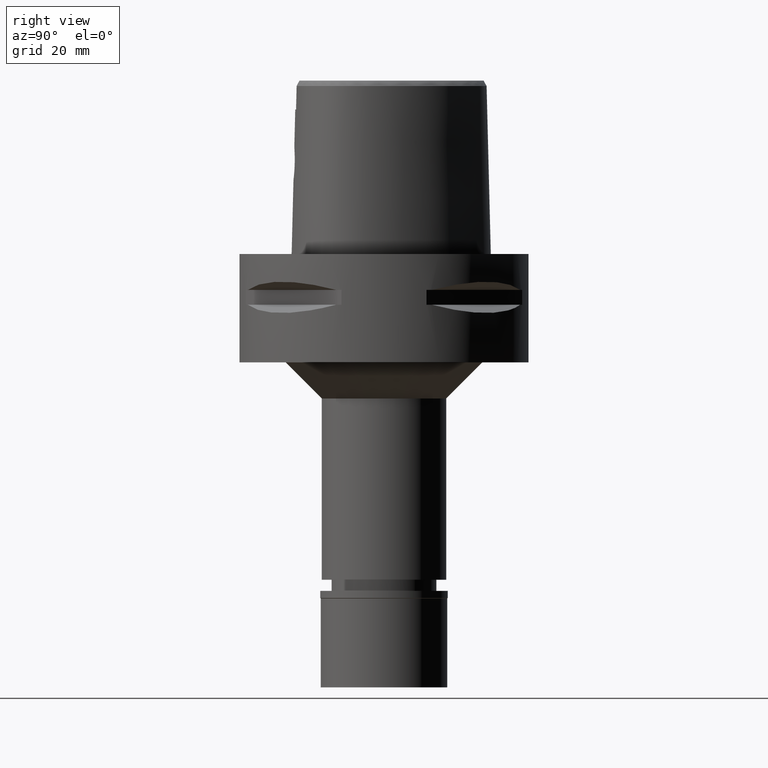
[diagram: clean part render]
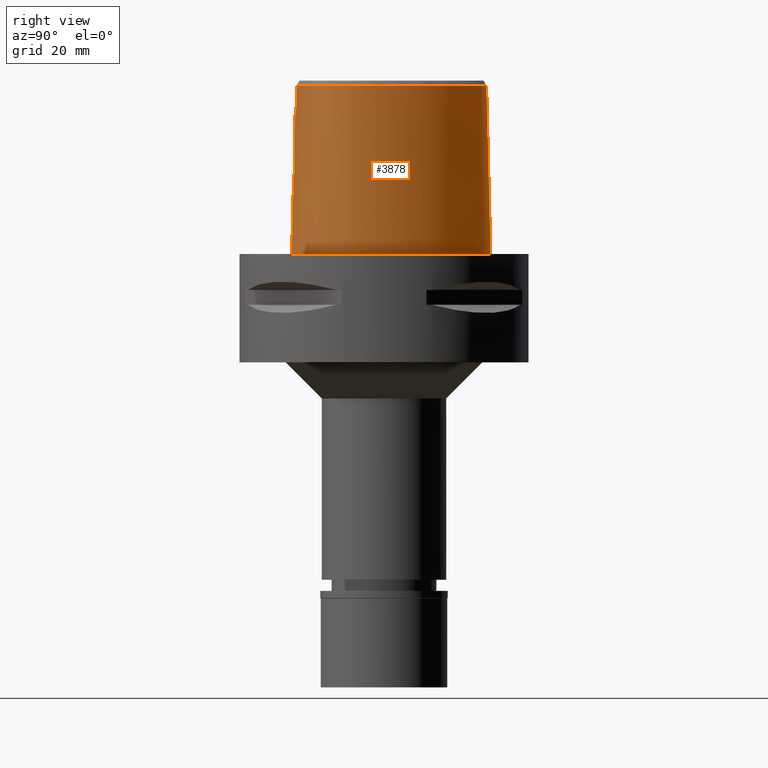
[diagram: same view with one face highlighted and labeled with its STEP entity id]
A machine part, right view. The second image highlights one B-rep face of the part: STEP entity #3878.
In plain terms, the highlighted face is a freeform B-spline surface patch.
Its self-contained STEP definition (entity closure, byte-faithful):
#1 = CARTESIAN_POINT ( 'NONE',  ( 27.12297208028999762, -11.41745865554000083, -0.9304144966840000031 ) ) ;
#6 = CARTESIAN_POINT ( 'NONE',  ( 3.115833847005023305, -24.76582665838805752, 28.31908668410563479 ) ) ;
#27 = CARTESIAN_POINT ( 'NONE',  ( 1.541632511942504946, -24.57506718866407525, 40.00000010061338429 ) ) ;
#32 = CARTESIAN_POINT ( 'NONE',  ( 4.549574022937066253, -24.73494683104343395, 24.92875559372934546 ) ) ;
#50 = CARTESIAN_POINT ( 'NONE',  ( 8.894849805857001357, 26.12169677030999893, 31.32395472169999806 ) ) ;
#53 = B_SPLINE_CURVE_WITH_KNOTS ( 'NONE', 3,
 ( #4469, #2809, #27, #4031 ),
 .UNSPECIFIED., .F., .F.,
 ( 4, 4 ),
 ( 0.0000000000000000000, 1.000000000000000000 ),
 .UNSPECIFIED. ) ;
#79 = CARTESIAN_POINT ( 'NONE',  ( 4.472216720976999405, -24.20009030094000124, 46.52069014668999358 ) ) ;
#120 = CARTESIAN_POINT ( 'NONE',  ( -0.5886350996053999474, 29.18561927013999835, 15.19677011251000032 ) ) ;
#150 = CARTESIAN_POINT ( 'NONE',  ( 1.153626000818862352, -24.82864766317861438, 29.44729853102404959 ) ) ;
#175 = FACE_OUTER_BOUND ( 'NONE', #4059, .T. ) ;
#194 = CARTESIAN_POINT ( 'NONE',  ( 2.373865160064000168, -25.21827242167999827, 15.19677011251000032 ) ) ;
#201 = LINE ( 'NONE', #2605, #949 ) ;
#229 = CARTESIAN_POINT ( 'NONE',  ( 1.952635857166509670, -25.01389984458331028, 20.88358337727338565 ) ) ;
#236 = CARTESIAN_POINT ( 'NONE',  ( 13.21796077284791338, 24.04386715009237108, 1.974420407008757594E-06 ) ) ;
#305 = CARTESIAN_POINT ( 'NONE',  ( 25.23075706227999859, 6.836210430755000012, -0.9304144966840000031 ) ) ;
#311 = CARTESIAN_POINT ( 'NONE',  ( 3.756465253610789645, -24.73852494831078630, 27.57169756947411798 ) ) ;
#317 = VERTEX_POINT ( 'NONE', #2881 ) ;
#330 = CARTESIAN_POINT ( 'NONE',  ( 27.16099298173000065, -1.823107493111000066, 15.19677011251000032 ) ) ;
#336 = CARTESIAN_POINT ( 'NONE',  ( 2.832428424601348027, -24.77719445135581466, 28.56165880794238632 ) ) ;
#358 = CARTESIAN_POINT ( 'NONE',  ( 6.528779353751000158, -24.06669571811000097, 47.45113933088000380 ) ) ;
#362 = CARTESIAN_POINT ( 'NONE',  ( 3.458990831517684938, -24.75121472495267838, 27.95724070546421913 ) ) ;
#386 = CARTESIAN_POINT ( 'NONE',  ( 2.334473171432999816, -24.41160994663999873, 47.45113933088000380 ) ) ;
#391 = CARTESIAN_POINT ( 'NONE',  ( 4.523121810470201787, -24.72136632330987993, 25.57645994462143690 ) ) ;
#410 = CARTESIAN_POINT ( 'NONE',  ( 26.50159626291999970, -8.602222729264999757, 47.45113933088000380 ) ) ;
#415 = CARTESIAN_POINT ( 'NONE',  ( 3.739368471919709336, -24.86915408846632047, 22.40675187304717397 ) ) ;
#427 = ORIENTED_EDGE ( 'NONE', *, *, #618, .T. ) ;
#455 = CARTESIAN_POINT ( 'NONE',  ( 9.105791461692000155, 26.46675913856000051, 15.19677011251000032 ) ) ;
#464 = CARTESIAN_POINT ( 'NONE',  ( -1.597093597969000331E-11, -25.57499999999999929, 7.627232179174998351E-14 ) ) ;
#483 = CARTESIAN_POINT ( 'NONE',  ( 0.7265635656848999924, 29.22802202868999899, 15.19677011251000032 ) ) ;
#535 = B_SPLINE_CURVE_WITH_KNOTS ( 'NONE', 3,
 ( #4139, #4966, #3435, #2193, #3772, #974, #2554, #5019, #4942, #3358, #1383, #2970, #1406, #229, #2992, #4574, #3796, #1430, #2628, #1462, #2683, #4327, #3934, #3542, #1132, #4276, #3177, #3514, #1932, #2381, #415, #4757, #2764, #3099, #4352, #1985, #3880, #4247, #5104, #1549, #1156, #3567, #2656, #720, #692, #32, #771, #1907, #391, #4706, #5043, #2271, #4302, #3854, #1599, #2299, #1575, #5069, #3962, #2741, #311, #1882, #1180, #362, #2350, #3157, #3461, #4683, #1961, #1488, #6, #4733, #336, #797, #3072, #2323, #3907, #4652, #1103, #3487, #1513, #2714, #746, #3130, #150, #3301, #4381 ),
 .UNSPECIFIED., .F., .F.,
 ( 4, 2, 2, 1, 1, 1, 1, 2, 2, 2, 2, 2, 1, 1, 2, 2, 2, 2, 2, 2, 1, 2, 2, 2, 2, 1, 2, 2, 2, 2, 1, 1, 1, 2, 2, 2, 2, 2, 1, 1, 2, 2, 2, 1, 2, 2, 2, 1, 2, 2, 4 ),
 ( 0.0000000000000000000, 0.06249999999999160394, 0.09374999999998739897, 0.1093749999999853034, 0.1171874999999842626, 0.1210937499999836103, 0.1230468749999832495, 0.1240234374999830552, 0.1249999999999828748, 0.1874999999999765188, 0.2187499999999733269, 0.2343749999999715228, 0.2421874999999705791, 0.2460937499999701628, 0.2480468749999697464, 0.2499999999999693578, 0.2812499999999640843, 0.2968749999999615308, 0.3124999999999589217, 0.3437499999999537037, 0.3593749999999510392, 0.3671874999999493183, 0.3749999999999476530, 0.4374999999999328870, 0.4687499999999258926, 0.4843749999999227285, 0.4921874999999211187, 0.4999999999999195088, 0.5624999999999068523, 0.5937499999999006350, 0.6093749999998975264, 0.6171874999998959721, 0.6210937499998951949, 0.6230468749998948619, 0.6249999999998945288, 0.6874999999998975264, 0.7187499999998990807, 0.7343749999999000799, 0.7421874999999006350, 0.7460937499999010791, 0.7480468749999016342, 0.7499999999999020783, 0.7812499999999142908, 0.7968749999999202860, 0.8046874999999232836, 0.8124999999999263922, 0.8437499999999386047, 0.8593749999999447109, 0.8671874999999478195, 0.8749999999999508171, 1.000000000000000000 ),
 .UNSPECIFIED. ) ;
#559 = CARTESIAN_POINT ( 'NONE',  ( 6.913370730855006308, 26.74336904842582641, 46.52071437701380319 ) ) ;
#601 = CARTESIAN_POINT ( 'NONE',  ( 6.262496925595644193, 28.35083003241188493, 1.974420407008757594E-06 ) ) ;
#618 = EDGE_CURVE ( 'NONE', #4721, #4061, #5120, .T. ) ;
#647 = VERTEX_POINT ( 'NONE', #1754 ) ;
#687 = CARTESIAN_POINT ( 'NONE',  ( 11.64093423793000071, -23.76831843015999723, 15.19677011251000032 ) ) ;
#692 = CARTESIAN_POINT ( 'NONE',  ( 4.547962263617892020, -24.73685171198799182, 24.85950514487635488 ) ) ;
#715 = CARTESIAN_POINT ( 'NONE',  ( 27.47379250792000249, -5.347524337088000124, 15.19677011251000032 ) ) ;
#720 = CARTESIAN_POINT ( 'NONE',  ( 4.544345534604059544, -24.73984392723427916, 24.75509518056023595 ) ) ;
#740 = CARTESIAN_POINT ( 'NONE',  ( 18.56135208419999927, -21.47443746733999959, -0.9304144966840000031 ) ) ;
#746 = CARTESIAN_POINT ( 'NONE',  ( 1.813541865606719483, -24.81148519056494806, 29.17313109452613418 ) ) ;
#763 = CARTESIAN_POINT ( 'NONE',  ( 4.516620373932790145, -24.24973711153631939, 44.34712678184333612 ) ) ;
#767 = CARTESIAN_POINT ( 'NONE',  ( 15.01246784113000032, -22.23414197131999970, 31.32395472169999806 ) ) ;
#771 = CARTESIAN_POINT ( 'NONE',  ( 4.549979298456326759, -24.73407938846013110, 24.96161245962010611 ) ) ;
#792 = CARTESIAN_POINT ( 'NONE',  ( 25.30843714187999893, -14.61183299640999955, 15.19677011251000032 ) ) ;
#797 = CARTESIAN_POINT ( 'NONE',  ( 2.744259390201582161, -24.78063453097690427, 28.63060330404749365 ) ) ;
#816 = CARTESIAN_POINT ( 'NONE',  ( -0.5711750988353999636, 28.78275048854000318, 31.32395472169999806 ) ) ;
#841 = CARTESIAN_POINT ( 'NONE',  ( 1.375467128704556785, 28.41206022877227610, 46.52071663099745535 ) ) ;
#888 = CARTESIAN_POINT ( 'NONE',  ( -0.9090099845204999696, 29.56867551645999725, -0.9304144966840000031 ) ) ;
#890 = CARTESIAN_POINT ( 'NONE',  ( 20.76159157987097359, 13.99289103071525098, 46.52070817855889118 ) ) ;
#896 = ORIENTED_EDGE ( 'NONE', *, *, #2450, .F. ) ;
#916 = CARTESIAN_POINT ( 'NONE',  ( 17.77103258665999874, 19.53703864478000085, -0.9304144966840000031 ) ) ;
#949 = VECTOR ( 'NONE', #4603, 1000.000000000000000 ) ;
#974 = CARTESIAN_POINT ( 'NONE',  ( 1.374979210368050042, -25.03889659011747781, 20.66206490747601876 ) ) ;
#1048 = CARTESIAN_POINT ( 'NONE',  ( -0.8532294277709000507, -25.59082453142000091, -0.9304144966840000031 ) ) ;
#1058 = CARTESIAN_POINT ( 'NONE',  ( 9.304563380788259508, 26.79191402025199764, 1.974420407008757594E-06 ) ) ;
#1073 = CARTESIAN_POINT ( 'NONE',  ( 18.17462484730999961, -20.76404276609999755, 31.32395472169999806 ) ) ;
#1099 = CARTESIAN_POINT ( 'NONE',  ( 24.14246364315999926, -15.65707284800999943, 31.32395472169999806 ) ) ;
#1103 = CARTESIAN_POINT ( 'NONE',  ( 2.284825071839919453, -24.79755434855747609, 28.93755567619669833 ) ) ;
#1127 = CARTESIAN_POINT ( 'NONE',  ( 6.584202214691000421, -24.46732446097999869, 31.32395472169999806 ) ) ;
#1131 = LINE ( 'NONE', #2006, #1450 ) ;
#1132 = CARTESIAN_POINT ( 'NONE',  ( 3.205701519811188227, -24.92381821717546941, 21.77105828208815197 ) ) ;
#1150 = CARTESIAN_POINT ( 'NONE',  ( 20.94550184246999791, -18.97246393720000057, 31.32395472169999806 ) ) ;
#1156 = CARTESIAN_POINT ( 'NONE',  ( 4.496850936021978384, -24.75618253903772725, 24.29074513878774155 ) ) ;
#1176 = CARTESIAN_POINT ( 'NONE',  ( 23.44929528191000045, -17.78045351983000089, -0.9304144966840000031 ) ) ;
#1180 = CARTESIAN_POINT ( 'NONE',  ( 3.512978482355693099, -24.74890643940160473, 27.89278862330787234 ) ) ;
#1228 = CARTESIAN_POINT ( 'NONE',  ( 24.69258566271185984, -14.08975149522584758, 46.52069831738054262 ) ) ;
#1230 = CARTESIAN_POINT ( 'NONE',  ( 11.74025984185140636, -24.13566401477424961, 1.974420407008757594E-06 ) ) ;
#1250 = CARTESIAN_POINT ( 'NONE',  ( 16.83227268858000159, 18.76477911573000057, 47.45113933088000380 ) ) ;
#1273 = CARTESIAN_POINT ( 'NONE',  ( 0.7047156105697000017, 28.82388503770999932, 31.32395472169999806 ) ) ;
#1276 = CARTESIAN_POINT ( 'NONE',  ( 24.48700992949209621, 6.834036305494167962, 46.52070592457523190 ) ) ;
#1289 = CARTESIAN_POINT ( 'NONE',  ( -1.451045074373000022E-08, -24.57504746727000011, 40.00000005214000254 ) ) ;
#1299 = CARTESIAN_POINT ( 'NONE',  ( 21.30723581571999858, 12.30173103132000101, 47.45113933088000380 ) ) ;
#1301 = CARTESIAN_POINT ( 'NONE',  ( 8.153873202539225318, -23.84765792154144748, 46.52069127368181967 ) ) ;
#1309 = CARTESIAN_POINT ( 'NONE',  ( 3.864279361662000249E-11, 29.57499999998999840, 6.979602081476998784E-14 ) ) ;
#1328 = CARTESIAN_POINT ( 'NONE',  ( -0.5689009026265999802, -25.59577917834000260, -0.9304144966840000031 ) ) ;
#1349 = CARTESIAN_POINT ( 'NONE',  ( -0.8321552619004000118, -24.38153494473000293, 47.45113933088000380 ) ) ;
#1366 = CARTESIAN_POINT ( 'NONE',  ( 3.864279361662000249E-11, 29.57499999998999840, 6.979602081476998784E-14 ) ) ;
#1383 = CARTESIAN_POINT ( 'NONE',  ( 1.717599865388684588, -25.02478947459729142, 20.78664336873092466 ) ) ;
#1406 = CARTESIAN_POINT ( 'NONE',  ( 1.732112786591196496, -25.02412118468006597, 20.79259001707690757 ) ) ;
#1412 = CARTESIAN_POINT ( 'NONE',  ( 25.20914245399029951, 6.827421856349520368, 1.974420407008757594E-06 ) ) ;
#1430 = CARTESIAN_POINT ( 'NONE',  ( 2.890648186359349836, -24.95092863274542339, 21.48525694161353883 ) ) ;
#1439 = CARTESIAN_POINT ( 'NONE',  ( 25.63812385576339992, -14.80217770964259749, 1.974420407008757594E-06 ) ) ;
#1450 = VECTOR ( 'NONE', #1906, 1000.000000000000227 ) ;
#1458 = CARTESIAN_POINT ( 'NONE',  ( 26.36214109940999961, -1.945111151957999995, 47.45113933088000380 ) ) ;
#1462 = CARTESIAN_POINT ( 'NONE',  ( 3.051956606900725344, -24.93748982820226345, 21.62510482542859336 ) ) ;
#1468 = CARTESIAN_POINT ( 'NONE',  ( 27.10051712605066498, -11.41106443955769123, 1.974420407008757594E-06 ) ) ;
#1482 = CARTESIAN_POINT ( 'NONE',  ( 11.74634101496999961, -24.15815461141999876, -0.9304144966840000031 ) ) ;
#1488 = CARTESIAN_POINT ( 'NONE',  ( 3.227783996387108889, -24.76107025147646823, 28.20686722737168139 ) ) ;
#1508 = CARTESIAN_POINT ( 'NONE',  ( 26.66520866077999941, -5.367805583153999471, 47.45113933088000380 ) ) ;
#1513 = CARTESIAN_POINT ( 'NONE',  ( 1.986969619769310080, -24.80670454267275460, 29.09445024139903069 ) ) ;
#1543 = CARTESIAN_POINT ( 'NONE',  ( 27.30517726064999806, -8.703986977019001259, 15.19677011251000032 ) ) ;
#1549 = CARTESIAN_POINT ( 'NONE',  ( 4.412773899541609701, -24.77516587915418000, 23.85162301166200649 ) ) ;
#1569 = CARTESIAN_POINT ( 'NONE',  ( 6.639625075632000772, -24.86795320384000263, 15.19677011251000032 ) ) ;
#1575 = CARTESIAN_POINT ( 'NONE',  ( 4.212885333431599655, -24.72121330192673838, 26.71877560768000848 ) ) ;
#1594 = CARTESIAN_POINT ( 'NONE',  ( 21.65785136985000037, 12.50416149780000019, 31.32395472169999806 ) ) ;
#1599 = CARTESIAN_POINT ( 'NONE',  ( 4.230858595537660527, -24.72073100376797683, 26.67421065539050673 ) ) ;
#1626 = CARTESIAN_POINT ( 'NONE',  ( 6.114741921538999314, 27.99897532808000022, 15.19677011251000032 ) ) ;
#1629 = CARTESIAN_POINT ( 'NONE',  ( -1.250270788031999972E-11, 28.41206021534999593, 46.52071719450999154 ) ) ;
#1650 = CARTESIAN_POINT ( 'NONE',  ( 26.66096789088744856, -6.450661550929511989, 46.52070141660805547 ) ) ;
#1698 = CARTESIAN_POINT ( 'NONE',  ( 21.61408639850393953, -17.89738970854695310, 46.52069634514494822 ) ) ;
#1721 = CARTESIAN_POINT ( 'NONE',  ( 26.53043812451387140, -3.252830914801159157, 46.52070254359986023 ) ) ;
#1745 = CARTESIAN_POINT ( 'NONE',  ( -0.5595330819889999807, -24.78951209270000078, 31.32395472169999806 ) ) ;
#1754 = CARTESIAN_POINT ( 'NONE',  ( -1.597093597969000331E-11, -25.57499999999999929, 7.627232179174998351E-14 ) ) ;
#1768 = ORIENTED_EDGE ( 'NONE', *, *, #3568, .T. ) ;
#1833 = CARTESIAN_POINT ( 'NONE',  ( 26.77222809492654321, 1.900468737312428935, 1.974420407008757594E-06 ) ) ;
#1834 = ORIENTED_EDGE ( 'NONE', *, *, #1880, .F. ) ;
#1846 = CARTESIAN_POINT ( 'NONE',  ( -0.8462047058141000111, -25.18772800252000010, 15.19677011251000032 ) ) ;
#1876 = CARTESIAN_POINT ( 'NONE',  ( 24.85610464697000310, 6.683875464327999616, 15.19677011251000032 ) ) ;
#1880 = EDGE_CURVE ( 'NONE', #3530, #2068, #2353, .T. ) ;
#1882 = CARTESIAN_POINT ( 'NONE',  ( 3.666127388008825871, -24.74236822830322780, 27.69981209002142819 ) ) ;
#1902 = CARTESIAN_POINT ( 'NONE',  ( 22.00846692397999860, 12.70659196427999937, 15.19677011251000032 ) ) ;
#1906 = DIRECTION ( 'NONE',  ( 1.099070075550026159E-12, 0.02499051293976060906, -0.9996876883622242138 ) ) ;
#1907 = CARTESIAN_POINT ( 'NONE',  ( 4.550159243768821860, -24.72595648767389775, 25.28426205013431982 ) ) ;
#1922 = CARTESIAN_POINT ( 'NONE',  ( 4.472216720976999405, -24.20009030094000124, 46.52069014668999358 ) ) ;
#1927 = CARTESIAN_POINT ( 'NONE',  ( 14.86558286360999936, -21.85772790580999825, 47.45113933088000380 ) ) ;
#1932 = CARTESIAN_POINT ( 'NONE',  ( 3.606429171763810171, -24.88406245827872709, 22.22480142265831660 ) ) ;
#1956 = CARTESIAN_POINT ( 'NONE',  ( 24.95856548170000266, -14.40983449898000046, 31.32395472169999806 ) ) ;
#1961 = CARTESIAN_POINT ( 'NONE',  ( 3.237005511786298584, -24.76067832112077838, 28.19756469887087036 ) ) ;
#1971 = ORIENTED_EDGE ( 'NONE', *, *, #2572, .T. ) ;
#1978 = CARTESIAN_POINT ( 'NONE',  ( 17.45811262063999791, 19.27961880176999898, 15.19677011251000032 ) ) ;
#1985 = CARTESIAN_POINT ( 'NONE',  ( 4.141553595727708981, -24.81790787904298767, 23.11546483665215845 ) ) ;
#2004 = CARTESIAN_POINT ( 'NONE',  ( 12.70057962618999881, 23.45048168634999897, 31.32395472169999806 ) ) ;
#2006 = CARTESIAN_POINT ( 'NONE',  ( -1.250270788031999972E-11, 28.41206021534999593, 46.52071719450999154 ) ) ;
#2029 = CARTESIAN_POINT ( 'NONE',  ( 2.760678900605475494, 28.19254769429864282, 46.52071606750154587 ) ) ;
#2051 = CARTESIAN_POINT ( 'NONE',  ( 26.56868348264600854, -7.988862950299643551, 46.52070085311213177 ) ) ;
#2068 = VERTEX_POINT ( 'NONE', #2994 ) ;
#2072 = CARTESIAN_POINT ( 'NONE',  ( 12.96695409472000016, 23.75598709287999810, 15.19677011251000032 ) ) ;
#2110 = ORIENTED_EDGE ( 'NONE', *, *, #3586, .F. ) ;
#2159 = B_SPLINE_CURVE_WITH_KNOTS ( 'NONE', 3,
 ( #1629, #841, #2029, #4449, #559, #3204, #3225, #890, #1276, #3708, #1721, #1650, #2051, #3612, #4825, #1228, #3686, #4851, #3246, #1698, #3299, #4493, #4782, #4879, #1301, #79 ),
 .UNSPECIFIED., .F., .F.,
 ( 4, 2, 2, 2, 2, 2, 2, 2, 2, 2, 2, 2, 4 ),
 ( 0.0000000000000000000, 0.06249999999999986122, 0.1249999999999997224, 0.2499999999999994449, 0.4999999999999988898, 0.5624999999999987788, 0.6249999999999986677, 0.6874999999999984457, 0.7187499999999985567, 0.7499999999999985567, 0.8124999999999988898, 0.8749999999999991118, 1.000000000000000000 ),
 .UNSPECIFIED. ) ;
#2193 = CARTESIAN_POINT ( 'NONE',  ( 1.011135947205146435, -25.05051087875798643, 20.56129276502818826 ) ) ;
#2243 = CARTESIAN_POINT ( 'NONE',  ( 4.602926386878999132, -24.35121850029999990, 40.00000005214999987 ) ) ;
#2265 = CARTESIAN_POINT ( 'NONE',  ( 11.53552746089000003, -23.37848224889000193, 31.32395472169999806 ) ) ;
#2271 = CARTESIAN_POINT ( 'NONE',  ( 4.337077477086218380, -24.71860659089785983, 26.37767366826317428 ) ) ;
#2294 = CARTESIAN_POINT ( 'NONE',  ( 25.62380425181000021, 1.595558239520999955, 47.45113933088000380 ) ) ;
#2299 = CARTESIAN_POINT ( 'NONE',  ( 4.220110851308596978, -24.72101730040711587, 26.70095761995009553 ) ) ;
#2319 = CARTESIAN_POINT ( 'NONE',  ( 18.36798846576000344, -21.11924011672000034, 15.19677011251000032 ) ) ;
#2323 = CARTESIAN_POINT ( 'NONE',  ( 2.592678685478296607, -24.78641481269938396, 28.73923899945382843 ) ) ;
#2324 = B_SPLINE_SURFACE_WITH_KNOTS ( 'NONE', 3, 3, ( 
 ( #1048, #1846, #4881, #1349 ),
 ( #1328, #4495, #1745, #4522 ),
 ( #3324, #194, #3041, #386 ),
 ( #5065, #1569, #1127, #358 ),
 ( #1482, #687, #2265, #4648 ),
 ( #4323, #3483, #767, #1927 ),
 ( #740, #2319, #1073, #3536 ),
 ( #4622, #4242, #1150, #4702 ),
 ( #1176, #2760, #2734, #3508 ),
 ( #5038, #4345, #1099, #2346 ),
 ( #3125, #792, #1956, #2709 ),
 ( #4728, #3874, #3928, #2651 ),
 ( #1, #2678, #3151, #5097 ),
 ( #2374, #1543, #3958, #410 ),
 ( #4271, #715, #3429, #1508 ),
 ( #3457, #330, #5011, #1458 ),
 ( #4298, #3848, #3092, #2294 ),
 ( #305, #1876, #3068, #4676 ),
 ( #3902, #1902, #1594, #1299 ),
 ( #916, #1978, #3583, #1250 ),
 ( #4076, #2072, #2004, #2419 ),
 ( #2858, #455, #50, #2493 ),
 ( #3275, #1626, #4823, #3632 ),
 ( #4004, #3657, #2883, #3202 ),
 ( #4447, #483, #1273, #4418 ),
 ( #4751, #120, #816, #3173 ),
 ( #888, #3244, #3562, #4849 ) ),
 .UNSPECIFIED., .F., .F., .F.,
 ( 4, 1, 1, 1, 1, 1, 1, 1, 1, 1, 1, 1, 1, 1, 1, 1, 1, 1, 1, 1, 1, 1, 1, 1, 4 ),
 ( 4, 4 ),
 ( -0.008851417483071999381, 0.0000000000000000000, 0.08333333333345001315, 0.1250000000001000033, 0.1666666666668000230, 0.2083333333333000081, 0.2500000000000000000, 0.2916666666666999919, 0.3125000000000000000, 0.3333333333333000081, 0.3541666666666999919, 0.3749999999998999689, 0.4166666666666000163, 0.4583333333332000326, 0.4999999999998999689, 0.5416666666664999852, 0.5833333333331000015, 0.6666666666664999852, 0.7499999999997000177, 0.8333333333329999704, 0.8749999999995999866, 0.9166666666663000340, 0.9583333333329000503, 1.000000000000000000, 1.012009199036000062 ),
 ( 4.810968352864000245E-09, 0.9999997546407000115 ),
 .UNSPECIFIED. ) ;
#2346 = CARTESIAN_POINT ( 'NONE',  ( 23.81701505730000079, -15.41783915960999884, 47.45113933088000380 ) ) ;
#2350 = CARTESIAN_POINT ( 'NONE',  ( 3.373359712598877458, -24.75487047605673041, 28.05365220515685465 ) ) ;
#2353 = B_SPLINE_CURVE_WITH_KNOTS ( 'NONE', 3,
 ( #3452, #3531, #763, #1922 ),
 .UNSPECIFIED., .F., .F.,
 ( 4, 4 ),
 ( 0.0000000000000000000, 1.000000000000000000 ),
 .UNSPECIFIED. ) ;
#2374 = CARTESIAN_POINT ( 'NONE',  ( 27.70696775952000124, -8.754869100896998546, -0.9304144966840000031 ) ) ;
#2381 = CARTESIAN_POINT ( 'NONE',  ( 3.695416430653956752, -24.87420445000562452, 22.34444809527640885 ) ) ;
#2382 = CARTESIAN_POINT ( 'NONE',  ( -1.451045074373000022E-08, -24.57504746727000011, 40.00000005214000254 ) ) ;
#2419 = CARTESIAN_POINT ( 'NONE',  ( 12.43420515765000012, 23.14497627983000072, 47.45113933088000380 ) ) ;
#2450 = EDGE_CURVE ( 'NONE', #317, #4494, #1131, .T. ) ;
#2482 = CARTESIAN_POINT ( 'NONE',  ( -4.859642500050305354E-09, -24.74922215084226451, 33.03333351495373194 ) ) ;
#2493 = CARTESIAN_POINT ( 'NONE',  ( 8.683908150023000871, 25.77663440205000001, 47.45113933088000380 ) ) ;
#2554 = CARTESIAN_POINT ( 'NONE',  ( 1.483723097888439035, -25.03485232889442713, 20.69751684277656878 ) ) ;
#2572 = EDGE_CURVE ( 'NONE', #317, #2068, #2159, .T. ) ;
#2586 = CARTESIAN_POINT ( 'NONE',  ( 27.85475984794120663, -5.337968751240708798, 1.974420407008757594E-06 ) ) ;
#2605 = CARTESIAN_POINT ( 'NONE',  ( -1.985135560754999918E-12, -25.06378435148999984, 20.44999999999999929 ) ) ;
#2628 = CARTESIAN_POINT ( 'NONE',  ( 2.955264688608310930, -24.94567926532401358, 21.53931554468389820 ) ) ;
#2651 = CARTESIAN_POINT ( 'NONE',  ( 25.26074791542000142, -12.91722050671000055, 47.45113933088000380 ) ) ;
#2656 = CARTESIAN_POINT ( 'NONE',  ( 4.537017841947839969, -24.74324082396891811, 24.64916680772596536 ) ) ;
#2678 = CARTESIAN_POINT ( 'NONE',  ( 26.73375369943000024, -11.30662581370999931, 15.19677011251000032 ) ) ;
#2683 = CARTESIAN_POINT ( 'NONE',  ( 3.100243586364403559, -24.93331626314396132, 21.66917441973975400 ) ) ;
#2709 = CARTESIAN_POINT ( 'NONE',  ( 24.60869382150999840, -14.20783600154999959, 47.45113933088000380 ) ) ;
#2714 = CARTESIAN_POINT ( 'NONE',  ( 1.883305297015232194, -24.80958828430692975, 29.14211520707035774 ) ) ;
#2734 = CARTESIAN_POINT ( 'NONE',  ( 22.86810880856999617, -17.21714035316999869, 31.32395472169999806 ) ) ;
#2741 = CARTESIAN_POINT ( 'NONE',  ( 3.996558060057622708, -24.72854169055286633, 27.19514510551929831 ) ) ;
#2760 = CARTESIAN_POINT ( 'NONE',  ( 23.15870204523999831, -17.49879693649999979, 15.19677011251000032 ) ) ;
#2764 = CARTESIAN_POINT ( 'NONE',  ( 3.937353243848377371, -24.84519667286562949, 22.71482954510200614 ) ) ;
#2809 = CARTESIAN_POINT ( 'NONE',  ( 3.083107003971940596, -24.50056602138296569, 40.00000010061338429 ) ) ;
#2858 = CARTESIAN_POINT ( 'NONE',  ( 9.316733117526998953, 26.81182150681999943, -0.9304144966840000031 ) ) ;
#2872 = CARTESIAN_POINT ( 'NONE',  ( -4.850846279681444503E-09, -24.66214466420030149, 36.51666702990807778 ) ) ;
#2881 = CARTESIAN_POINT ( 'NONE',  ( -1.250270788031999972E-11, 28.41206021534999593, 46.52071719450999154 ) ) ;
#2883 = CARTESIAN_POINT ( 'NONE',  ( 2.979937747100999790, 28.57037854739000338, 31.32395472169999806 ) ) ;
#2903 = ORIENTED_EDGE ( 'NONE', *, *, #3945, .T. ) ;
#2959 = CARTESIAN_POINT ( 'NONE',  ( 1.372734075386999954E-14, -24.83629963747999980, 29.55000000000000071 ) ) ;
#2970 = CARTESIAN_POINT ( 'NONE',  ( 1.726554843533688599, -25.02437791916835508, 20.79030502623852783 ) ) ;
#2992 = CARTESIAN_POINT ( 'NONE',  ( 2.192364263587875062, -25.00047163864959288, 21.00192190659234370 ) ) ;
#2994 = CARTESIAN_POINT ( 'NONE',  ( 4.472216720976999405, -24.20009030094000124, 46.52069014668999358 ) ) ;
#3027 = CARTESIAN_POINT ( 'NONE',  ( 18.55019646715531678, -21.45394526901041132, 1.974420407008757594E-06 ) ) ;
#3041 = CARTESIAN_POINT ( 'NONE',  ( 2.354169165747999948, -24.81494118415999850, 31.32395472169999806 ) ) ;
#3068 = CARTESIAN_POINT ( 'NONE',  ( 24.48145223166000051, 6.531540497901000109, 31.32395472169999806 ) ) ;
#3072 = CARTESIAN_POINT ( 'NONE',  ( 2.653628212344382398, -24.78409939537364437, 28.69623435022997526 ) ) ;
#3092 = CARTESIAN_POINT ( 'NONE',  ( 26.01411825394999866, 1.699187955500000013, 31.32395472169999806 ) ) ;
#3099 = CARTESIAN_POINT ( 'NONE',  ( 4.043275511959664392, -24.83139551622597807, 22.91194186429524393 ) ) ;
#3125 = CARTESIAN_POINT ( 'NONE',  ( 25.65830880207000320, -14.81383149384000042, -0.9304144966840000031 ) ) ;
#3130 = CARTESIAN_POINT ( 'NONE',  ( 1.779627886570330109, -24.81238721778816014, 29.18772178098384273 ) ) ;
#3151 = CARTESIAN_POINT ( 'NONE',  ( 26.34453531856999930, -11.19579297189000044, 31.32395472169999806 ) ) ;
#3157 = CARTESIAN_POINT ( 'NONE',  ( 3.329382130118905714, -24.75674668230310971, 28.10179055163413864 ) ) ;
#3173 = CARTESIAN_POINT ( 'NONE',  ( -0.5537150980654000909, 28.37988170694000090, 47.45113933088000380 ) ) ;
#3177 = CARTESIAN_POINT ( 'NONE',  ( 3.418326490945208906, -24.90370471633882232, 21.99337763265276635 ) ) ;
#3202 = CARTESIAN_POINT ( 'NONE',  ( 2.892852097346000129, 28.17405735395999855, 47.45113933088000380 ) ) ;
#3204 = CARTESIAN_POINT ( 'NONE',  ( 10.99875819582747205, 24.38035098655865696, 46.52071268652617420 ) ) ;
#3206 = CARTESIAN_POINT ( 'NONE',  ( 6.691850457040011690, -25.24546870095779738, 1.974420407008757594E-06 ) ) ;
#3225 = CARTESIAN_POINT ( 'NONE',  ( 13.63304938779826792, 22.11238814014294363, 46.52071155953430548 ) ) ;
#3244 = CARTESIAN_POINT ( 'NONE',  ( -0.8826521031248000249, 29.16640541415000243, 15.19677011251000032 ) ) ;
#3246 = CARTESIAN_POINT ( 'NONE',  ( 23.08984995680105001, -16.35075897049411253, 46.52069719038878048 ) ) ;
#3257 = B_SPLINE_CURVE_WITH_KNOTS ( 'NONE', 3,
 ( #464, #4784, #3206, #1230, #4559, #3027, #3411, #4581, #4609, #1439, #4997, #1468, #3861, #2586, #4173, #1833, #1412, #4149, #3365, #236, #1058, #601, #3338, #4975, #1366 ),
 .UNSPECIFIED., .F., .F.,
 ( 4, 1, 1, 1, 1, 1, 1, 1, 1, 1, 1, 1, 1, 1, 1, 1, 1, 1, 1, 1, 1, 1, 4 ),
 ( 0.0000000000000000000, 0.08333333333345001315, 0.1250000000001000033, 0.1666666666668000230, 0.2083333333333000081, 0.2500000000000000000, 0.2916666666666999919, 0.3125000000000000000, 0.3333333333333000081, 0.3541666666666999919, 0.3749999999998999689, 0.4166666666666000163, 0.4583333333332000326, 0.4999999999998999689, 0.5416666666664999852, 0.5833333333331000015, 0.6666666666664999852, 0.7499999999997000177, 0.8333333333329999704, 0.8749999999995999866, 0.9166666666663000340, 0.9583333333329000503, 1.000000000000000000 ),
 .UNSPECIFIED. ) ;
#3275 = CARTESIAN_POINT ( 'NONE',  ( 6.271543170706000758, 28.37237220568000140, -0.9304144966840000031 ) ) ;
#3299 = CARTESIAN_POINT ( 'NONE',  ( 20.45409312013616443, -18.82869992193766961, 46.52069578164903874 ) ) ;
#3301 = CARTESIAN_POINT ( 'NONE',  ( 0.5545157691444349002, -24.83629963747999980, 29.54999999999999716 ) ) ;
#3324 = CARTESIAN_POINT ( 'NONE',  ( 2.393561154379000300, -25.62160365920000160, -0.9304144966840000031 ) ) ;
#3338 = CARTESIAN_POINT ( 'NONE',  ( 3.149084863849020088, 29.34015620148282721, 1.974420407008757594E-06 ) ) ;
#3358 = CARTESIAN_POINT ( 'NONE',  ( 1.704163054239501429, -25.02540437729528122, 20.78117410888036787 ) ) ;
#3365 = CARTESIAN_POINT ( 'NONE',  ( 17.75297947338710713, 19.52218746847553987, 1.974420407008757594E-06 ) ) ;
#3411 = CARTESIAN_POINT ( 'NONE',  ( 21.42129056364667861, -19.59889644489260974, 1.974420407008757594E-06 ) ) ;
#3429 = CARTESIAN_POINT ( 'NONE',  ( 27.06950058434999917, -5.357664960121001130, 31.32395472169999806 ) ) ;
#3435 = CARTESIAN_POINT ( 'NONE',  ( 0.5741109003791865506, -25.06046598330699382, 20.47661985235020410 ) ) ;
#3452 = CARTESIAN_POINT ( 'NONE',  ( 4.602926386878999132, -24.35121850029999990, 40.00000005214999987 ) ) ;
#3457 = CARTESIAN_POINT ( 'NONE',  ( 27.56041892290000206, -1.762105663687000057, -0.9304144966840000031 ) ) ;
#3461 = CARTESIAN_POINT ( 'NONE',  ( 3.275992991610295668, -24.75902016830567476, 28.15772619068259885 ) ) ;
#3483 = CARTESIAN_POINT ( 'NONE',  ( 15.15935281866000039, -22.61055603683000115, 15.19677011251000032 ) ) ;
#3487 = CARTESIAN_POINT ( 'NONE',  ( 2.087632527504702740, -24.80370565429717189, 29.04349576580941061 ) ) ;
#3508 = CARTESIAN_POINT ( 'NONE',  ( 22.57751557190999847, -16.93548376984000114, 47.45113933088000380 ) ) ;
#3514 = CARTESIAN_POINT ( 'NONE',  ( 3.560464869665264320, -24.88898092548868846, 22.16607190872596433 ) ) ;
#3530 = VERTEX_POINT ( 'NONE', #2243 ) ;
#3531 = CARTESIAN_POINT ( 'NONE',  ( 4.560197243509509057, -24.30012338778693248, 42.17356341699667155 ) ) ;
#3536 = CARTESIAN_POINT ( 'NONE',  ( 17.98126122886999667, -20.40884541547000097, 47.45113933088000380 ) ) ;
#3542 = CARTESIAN_POINT ( 'NONE',  ( 3.196341748950033423, -24.92467674393279253, 21.76178677583780186 ) ) ;
#3562 = CARTESIAN_POINT ( 'NONE',  ( -0.8562942217290000491, 28.76413531182999961, 31.32395472169999806 ) ) ;
#3567 = CARTESIAN_POINT ( 'NONE',  ( 4.517116520646563771, -24.75057419275595905, 24.43553773667434115 ) ) ;
#3568 = EDGE_CURVE ( 'NONE', #3929, #647, #201, .T. ) ;
#3583 = CARTESIAN_POINT ( 'NONE',  ( 17.14519265460999975, 19.02219895874999978, 31.32395472169999806 ) ) ;
#3586 = EDGE_CURVE ( 'NONE', #3929, #4061, #535, .T. ) ;
#3612 = CARTESIAN_POINT ( 'NONE',  ( 26.04423705949261603, -10.88022456237685809, 46.52069972612034832 ) ) ;
#3632 = CARTESIAN_POINT ( 'NONE',  ( 5.801139423204000778, 27.25218157287000054, 47.45113933088000380 ) ) ;
#3657 = CARTESIAN_POINT ( 'NONE',  ( 3.067023396857000428, 28.96669974081000376, 15.19677011251000032 ) ) ;
#3686 = CARTESIAN_POINT ( 'NONE',  ( 24.33934953590420847, -14.68006085516879011, 46.52069803563260564 ) ) ;
#3708 = CARTESIAN_POINT ( 'NONE',  ( 26.30769162470673095, -1.593520748818601840, 46.52070310709578393 ) ) ;
#3772 = CARTESIAN_POINT ( 'NONE',  ( 1.157035249422594614, -25.04636291852922270, 20.59695966232704833 ) ) ;
#3796 = CARTESIAN_POINT ( 'NONE',  ( 2.697261088284437669, -24.96604596303028600, 21.33198344650132938 ) ) ;
#3848 = CARTESIAN_POINT ( 'NONE',  ( 26.40443225607999977, 1.802817671479999939, 15.19677011251000032 ) ) ;
#3854 = CARTESIAN_POINT ( 'NONE',  ( 4.255303340876160689, -24.72011691775877296, 26.61166571686794313 ) ) ;
#3861 = CARTESIAN_POINT ( 'NONE',  ( 27.68378748924092392, -8.751933587520792202, 1.974420407008757594E-06 ) ) ;
#3874 = CARTESIAN_POINT ( 'NONE',  ( 26.00056140238000069, -13.24168030116999972, 15.19677011251000032 ) ) ;
#3878 = ADVANCED_FACE ( 'NONE', ( #175 ), #2324, .T. ) ;
#3880 = CARTESIAN_POINT ( 'NONE',  ( 4.172398775490961498, -24.81348664747167732, 23.18477895933824584 ) ) ;
#3902 = CARTESIAN_POINT ( 'NONE',  ( 22.35908247811000038, 12.90902243076000033, -0.9304144966840000031 ) ) ;
#3907 = CARTESIAN_POINT ( 'NONE',  ( 2.560989721135740638, -24.78761092133467869, 28.76100236096186080 ) ) ;
#3914 = ORIENTED_EDGE ( 'NONE', *, *, #4791, .T. ) ;
#3928 = CARTESIAN_POINT ( 'NONE',  ( 25.63065465889999928, -13.07945040393999925, 31.32395472169999806 ) ) ;
#3929 = VERTEX_POINT ( 'NONE', #4055 ) ;
#3934 = CARTESIAN_POINT ( 'NONE',  ( 3.180359783745173807, -24.92613363770007595, 21.74608895217521010 ) ) ;
#3945 = EDGE_CURVE ( 'NONE', #3530, #4721, #53, .T. ) ;
#3958 = CARTESIAN_POINT ( 'NONE',  ( 26.90338676178999933, -8.653104853142000508, 31.32395472169999806 ) ) ;
#3962 = CARTESIAN_POINT ( 'NONE',  ( 4.115420520910590518, -24.72394829500682434, 26.95489229166221889 ) ) ;
#4004 = CARTESIAN_POINT ( 'NONE',  ( 3.154109046611999645, 29.36302093424000148, -0.9304144966840000031 ) ) ;
#4031 = CARTESIAN_POINT ( 'NONE',  ( -1.451045074373000022E-08, -24.57504746727000011, 40.00000005214000254 ) ) ;
#4055 = CARTESIAN_POINT ( 'NONE',  ( -1.985135560754999918E-12, -25.06378435148999984, 20.44999999999999929 ) ) ;
#4059 = EDGE_LOOP ( 'NONE', ( #896, #1971, #1834, #2903, #427, #2110, #1768, #3914 ) ) ;
#4061 = VERTEX_POINT ( 'NONE', #2959 ) ;
#4067 = CARTESIAN_POINT ( 'NONE',  ( 1.372734075386999954E-14, -24.83629963747999980, 29.55000000000000071 ) ) ;
#4076 = CARTESIAN_POINT ( 'NONE',  ( 13.23332856326000062, 24.06149249941000079, -0.9304144966840000031 ) ) ;
#4139 = CARTESIAN_POINT ( 'NONE',  ( -1.985135560754999918E-12, -25.06378435148999984, 20.44999999999999929 ) ) ;
#4149 = CARTESIAN_POINT ( 'NONE',  ( 22.33885461475423995, 12.89734372521836647, 1.974420407008757594E-06 ) ) ;
#4173 = CARTESIAN_POINT ( 'NONE',  ( 27.53737506970079707, -1.765625007468258234, 1.974420407008757594E-06 ) ) ;
#4242 = CARTESIAN_POINT ( 'NONE',  ( 21.19046238763000289, -19.29498366445999835, 15.19677011251000032 ) ) ;
#4247 = CARTESIAN_POINT ( 'NONE',  ( 4.186622009783885545, -24.81141158316093609, 23.21777758281611170 ) ) ;
#4271 = CARTESIAN_POINT ( 'NONE',  ( 27.87808443149000226, -5.337383714055000006, -0.9304144966840000031 ) ) ;
#4276 = CARTESIAN_POINT ( 'NONE',  ( 3.317903692992028919, -24.91347842919924815, 21.88291014845664151 ) ) ;
#4298 = CARTESIAN_POINT ( 'NONE',  ( 26.79474625821999823, 1.906447387460000087, -0.9304144966840000031 ) ) ;
#4302 = CARTESIAN_POINT ( 'NONE',  ( 4.301663164393236372, -24.71910450366888767, 26.48607042045131976 ) ) ;
#4323 = CARTESIAN_POINT ( 'NONE',  ( 15.30623779617999958, -22.98697010233999904, -0.9304144966840000031 ) ) ;
#4327 = CARTESIAN_POINT ( 'NONE',  ( 3.156365463052544396, -24.92830912253881337, 21.72269515073475432 ) ) ;
#4345 = CARTESIAN_POINT ( 'NONE',  ( 24.46791222903000218, -15.89630653641000180, 15.19677011251000032 ) ) ;
#4352 = CARTESIAN_POINT ( 'NONE',  ( 4.094115463335096017, -24.82458451489376827, 23.01236396660572225 ) ) ;
#4381 = CARTESIAN_POINT ( 'NONE',  ( 1.372734075386999954E-14, -24.83629963747999980, 29.55000000000000071 ) ) ;
#4418 = CARTESIAN_POINT ( 'NONE',  ( 0.6828676554545000110, 28.41974804672999966, 47.45113933088000380 ) ) ;
#4447 = CARTESIAN_POINT ( 'NONE',  ( 0.7484115208000999830, 29.63215901966000132, -0.9304144966840000031 ) ) ;
#4449 = CARTESIAN_POINT ( 'NONE',  ( 5.530043876419417970, 27.35846726636316717, 46.52071494050972689 ) ) ;
#4469 = CARTESIAN_POINT ( 'NONE',  ( 4.602926386878999132, -24.35121850029999990, 40.00000005214999987 ) ) ;
#4493 = CARTESIAN_POINT ( 'NONE',  ( 17.84219066873641779, -20.48406917474488864, 46.52069465465717002 ) ) ;
#4494 = VERTEX_POINT ( 'NONE', #1309 ) ;
#4495 = CARTESIAN_POINT ( 'NONE',  ( -0.5642169923078000915, -25.19264563552000169, 15.19677011251000032 ) ) ;
#4522 = CARTESIAN_POINT ( 'NONE',  ( -0.5548491716701999810, -24.38637854987999987, 47.45113933088000380 ) ) ;
#4559 = CARTESIAN_POINT ( 'NONE',  ( 15.29776364487868001, -22.96525386016923420, 1.974420407008757594E-06 ) ) ;
#4574 = CARTESIAN_POINT ( 'NONE',  ( 2.568983978599216567, -24.97528315391443599, 21.24168007029586036 ) ) ;
#4581 = CARTESIAN_POINT ( 'NONE',  ( 23.43253025190995942, -17.76420406707828548, 1.974420407008757594E-06 ) ) ;
#4603 = DIRECTION ( 'NONE',  ( -6.836886303515783616E-13, -0.02499051295403921166, -0.9996876883618673881 ) ) ;
#4609 = CARTESIAN_POINT ( 'NONE',  ( 24.77458489509248452, -16.12173825195954180, 1.974420407008757594E-06 ) ) ;
#4622 = CARTESIAN_POINT ( 'NONE',  ( 21.43542293277999988, -19.61750339171999968, -0.9304144966840000031 ) ) ;
#4648 = CARTESIAN_POINT ( 'NONE',  ( 11.43012068386000024, -22.98864606763000040, 47.45113933088000380 ) ) ;
#4652 = CARTESIAN_POINT ( 'NONE',  ( 2.410767390560844436, -24.79324877274626715, 28.86155595108843741 ) ) ;
#4676 = CARTESIAN_POINT ( 'NONE',  ( 24.10679981634999791, 6.379205531472999624, 47.45113933088000380 ) ) ;
#4683 = CARTESIAN_POINT ( 'NONE',  ( 3.252660951005722723, -24.76001264346001562, 28.18163816682579181 ) ) ;
#4702 = CARTESIAN_POINT ( 'NONE',  ( 20.70054129731000003, -18.64994420994000279, 47.45113933088000380 ) ) ;
#4706 = CARTESIAN_POINT ( 'NONE',  ( 4.437987378315741083, -24.71842636459946263, 26.01433587875821729 ) ) ;
#4721 = VERTEX_POINT ( 'NONE', #2382 ) ;
#4728 = CARTESIAN_POINT ( 'NONE',  ( 26.37046814585999854, -13.40391019840000020, -0.9304144966840000031 ) ) ;
#4733 = CARTESIAN_POINT ( 'NONE',  ( 3.005270379488210519, -24.77034733848114811, 28.41951852238053178 ) ) ;
#4751 = CARTESIAN_POINT ( 'NONE',  ( -0.6060951003754000421, 29.58848805174000063, -0.9304144966840000031 ) ) ;
#4757 = CARTESIAN_POINT ( 'NONE',  ( 3.861082105047392687, -24.85463631592571332, 22.58840412900324424 ) ) ;
#4782 = CARTESIAN_POINT ( 'NONE',  ( 16.39076485917288650, -21.20751266143067681, 46.52069409116126764 ) ) ;
#4784 = CARTESIAN_POINT ( 'NONE',  ( 2.676740182824064451, -25.57499995064635812, 1.974420407008758018E-06 ) ) ;
#4791 = EDGE_CURVE ( 'NONE', #647, #4494, #3257, .T. ) ;
#4823 = CARTESIAN_POINT ( 'NONE',  ( 5.957940672371000446, 27.62557845046999816, 31.32395472169999806 ) ) ;
#4825 = CARTESIAN_POINT ( 'NONE',  ( 25.61240997289504762, -12.23358473965763871, 46.52069916262445304 ) ) ;
#4849 = CARTESIAN_POINT ( 'NONE',  ( -0.8299363403332999933, 28.36186520951999768, 47.45113933088000380 ) ) ;
#4851 = CARTESIAN_POINT ( 'NONE',  ( 23.53784508589939861, -15.81022840325099743, 46.52069747213668904 ) ) ;
#4879 = CARTESIAN_POINT ( 'NONE',  ( 11.70978320535363437, -23.05272019185124321, 46.52069240067364575 ) ) ;
#4881 = CARTESIAN_POINT ( 'NONE',  ( -0.8391799838572999715, -24.78463147363000019, 31.32395472169999806 ) ) ;
#4942 = CARTESIAN_POINT ( 'NONE',  ( 1.672780685870660866, -25.02682213713908510, 20.76857498625472687 ) ) ;
#4966 = CARTESIAN_POINT ( 'NONE',  ( 0.2837429639709332374, -25.06378435148998918, 20.44999999999999929 ) ) ;
#4975 = CARTESIAN_POINT ( 'NONE',  ( 1.049694954483849640, 29.57499995063796661, 1.974420407008757594E-06 ) ) ;
#4997 = CARTESIAN_POINT ( 'NONE',  ( 26.34912732691072179, -13.39455076139062051, 1.974420407008757594E-06 ) ) ;
#5011 = CARTESIAN_POINT ( 'NONE',  ( 26.76156704057000013, -1.884109322533999764, 31.32395472169999806 ) ) ;
#5019 = CARTESIAN_POINT ( 'NONE',  ( 1.609901483200825822, -25.02958960435420366, 20.74402583925022370 ) ) ;
#5038 = CARTESIAN_POINT ( 'NONE',  ( 24.79336081489000065, -16.13554022481000061, -0.9304144966840000031 ) ) ;
#5043 = CARTESIAN_POINT ( 'NONE',  ( 4.402195190950401127, -24.71810392633526376, 26.16020714300088912 ) ) ;
#5065 = CARTESIAN_POINT ( 'NONE',  ( 6.695047936571999259, -25.26858194671000035, -0.9304144966840000031 ) ) ;
#5069 = CARTESIAN_POINT ( 'NONE',  ( 4.208386412724203218, -24.72133790640166850, 26.72975093107581657 ) ) ;
#5097 = CARTESIAN_POINT ( 'NONE',  ( 25.95531693772000281, -11.08496013006000069, 47.45113933088000380 ) ) ;
#5104 = CARTESIAN_POINT ( 'NONE',  ( 4.325577296999668420, -24.79069917426005532, 23.55238152010285901 ) ) ;
#5120 = B_SPLINE_CURVE_WITH_KNOTS ( 'NONE', 3,
 ( #1289, #2872, #2482, #4067 ),
 .UNSPECIFIED., .F., .F.,
 ( 4, 4 ),
 ( 0.0000000000000000000, 1.000000000000000000 ),
 .UNSPECIFIED. ) ;